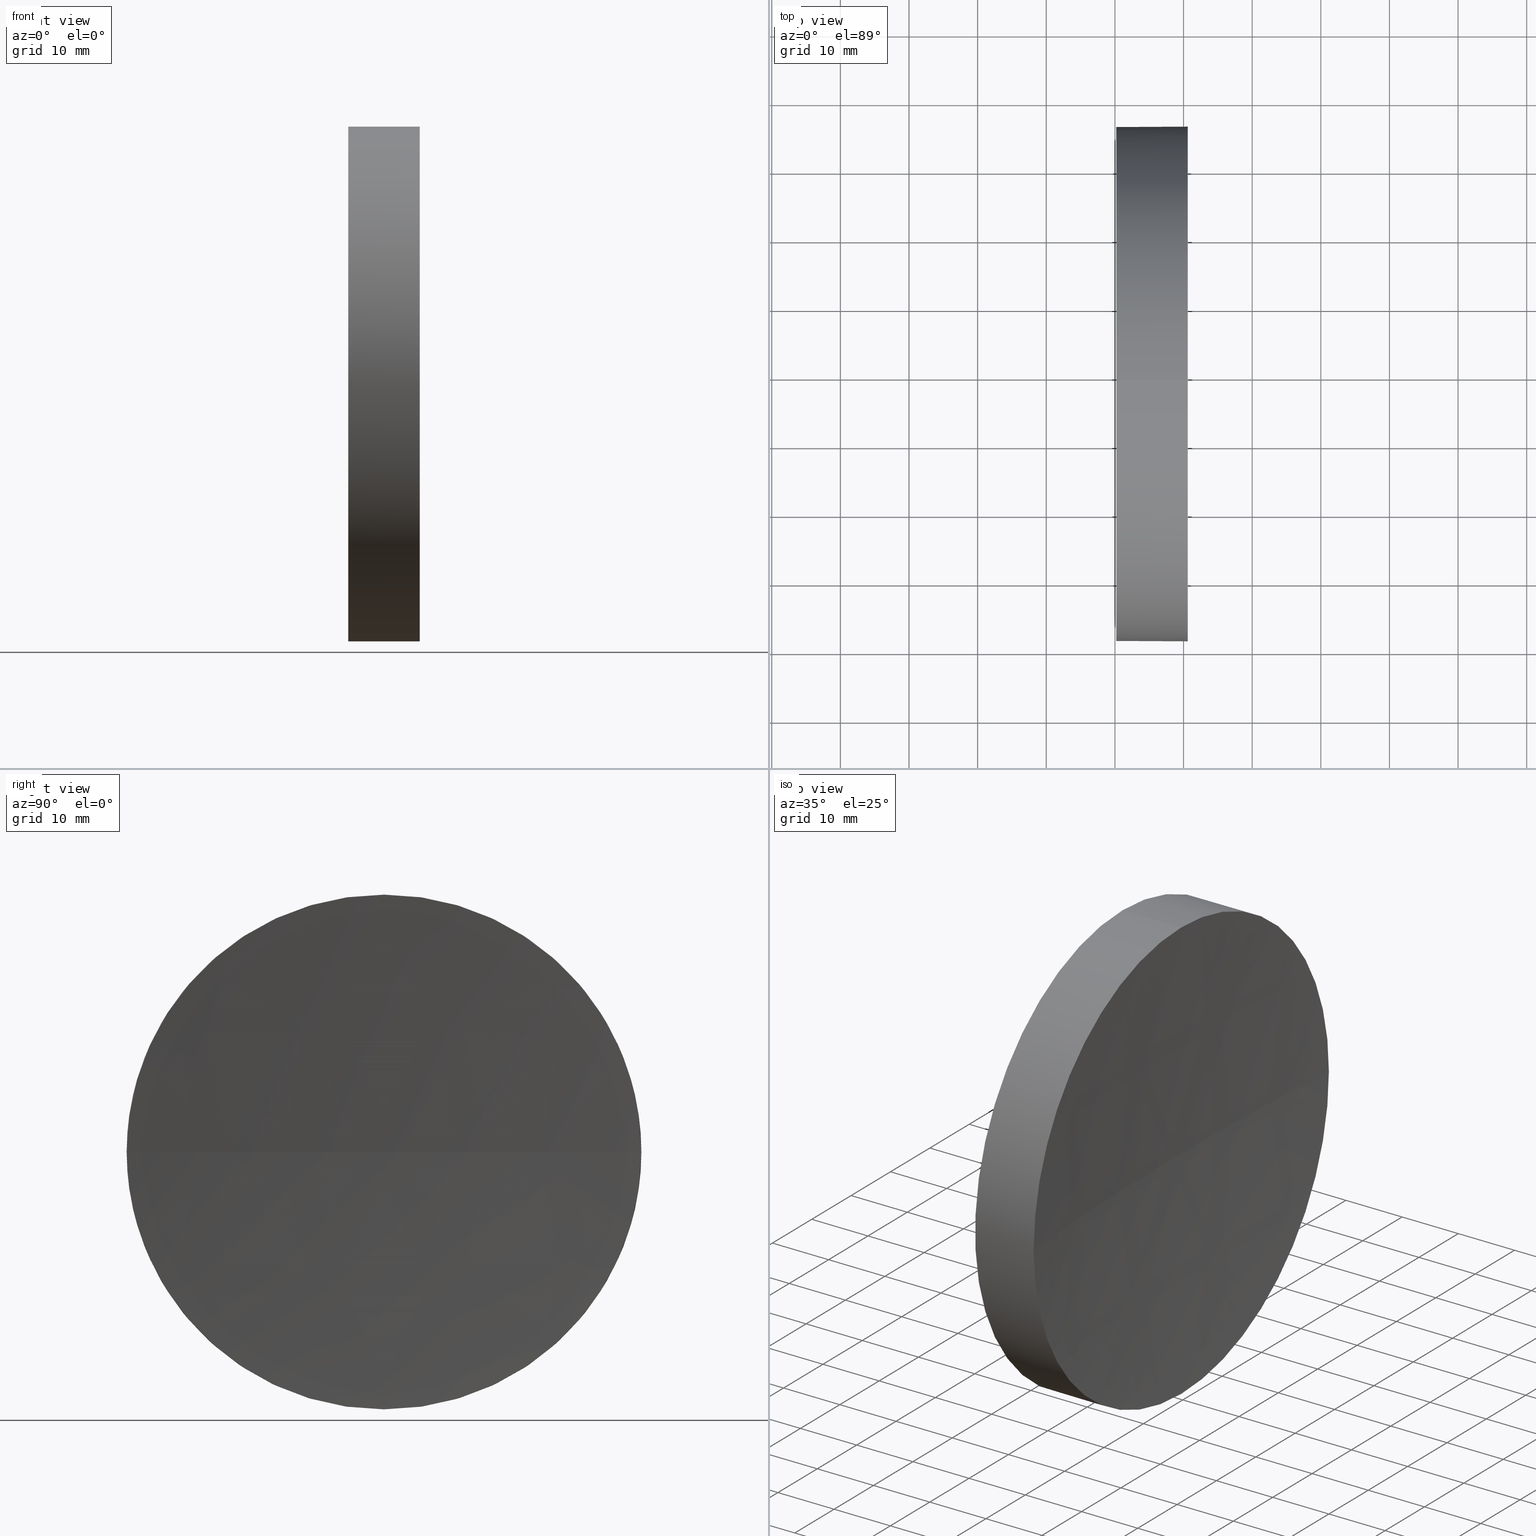
[diagram: canonical four-view strip — front | top / right | iso, engineering-drawing reading convention]
A machine part, canonical four-view strip (front | top / right | iso — engineering-drawing reading convention). The complete STEP part file that produces these views, byte-faithful:
ISO-10303-21;
HEADER;
FILE_DESCRIPTION (( 'STEP AP214' ),
    '1' );
FILE_NAME ('270062.STEP',
    '2019-07-23T08:49:29',
    ( '' ),
    ( '' ),
    'SwSTEP 2.0',
    'SolidWorks 2016',
    '' );
FILE_SCHEMA (( 'AUTOMOTIVE_DESIGN' ));
ENDSEC;

DATA;
#1 = DIRECTION ( 'NONE',  ( 0.0000000000000000000, -1.000000000000000000, -1.224646799147353200E-016 ) ) ;
#2 = PRESENTATION_STYLE_ASSIGNMENT (( #165 ) ) ;
#3 = ADVANCED_FACE ( 'NONE', ( #16 ), #159, .T. ) ;
#4 = CARTESIAN_POINT ( 'NONE',  ( 240.6078455750809400, 138.7560422467448700, 0.0000000000000000000 ) ) ;
#5 = DIRECTION ( 'NONE',  ( 0.0000000000000000000, -1.000000000000000000, 0.0000000000000000000 ) ) ;
#6 =( LENGTH_UNIT ( ) NAMED_UNIT ( * ) SI_UNIT ( .MILLI., .METRE. ) );
#7 = CARTESIAN_POINT ( 'NONE',  ( 240.6078455750809400, 138.7560422467448700, 0.0000000000000000000 ) ) ;
#8 = COLOUR_RGB ( '',1.000000000000000000, 1.000000000000000000, 1.000000000000000000 ) ;
#9 = FILL_AREA_STYLE_COLOUR ( '', #104 ) ;
#10 = FACE_OUTER_BOUND ( 'NONE', #133, .T. ) ;
#11 = VECTOR ( 'NONE', #85, 1000.000000000000000 ) ;
#12 = PRODUCT_DEFINITION ( 'δ֪', '', #99, #76 ) ;
#13 = CARTESIAN_POINT ( 'NONE',  ( 230.1996119052661200, 138.7560422467448700, -37.50000000000000700 ) ) ;
#14 = CARTESIAN_POINT ( 'NONE',  ( 240.6078455750809400, 138.7560422467448700, 0.0000000000000000000 ) ) ;
#15 = CARTESIAN_POINT ( 'NONE',  ( 217.9702860043302100, 138.7560422467448700, 0.0000000000000000000 ) ) ;
#16 = FACE_OUTER_BOUND ( 'NONE', #29, .T. ) ;
#17 = ADVANCED_FACE ( 'NONE', ( #96 ), #21, .T. ) ;
#18 =( NAMED_UNIT ( * ) SI_UNIT ( $, .STERADIAN. ) SOLID_ANGLE_UNIT ( ) );
#19 = SURFACE_STYLE_FILL_AREA ( #51 ) ;
#20 = EDGE_CURVE ( 'NONE', #171, #34, #143, .T. ) ;
#21 = CYLINDRICAL_SURFACE ( 'NONE', #70, 37.50000000000000700 ) ;
#22 = DIRECTION ( 'NONE',  ( 0.0000000000000000000, 0.0000000000000000000, 1.000000000000000000 ) ) ;
#23 = SURFACE_STYLE_USAGE ( .BOTH. , #167 ) ;
#24 = EDGE_CURVE ( 'NONE', #182, #171, #41, .T. ) ;
#25 = EDGE_LOOP ( 'NONE', ( #183, #124, #166, #158, #163 ) ) ;
#26 = STYLED_ITEM ( 'NONE', ( #135 ), #55 ) ;
#27 = DIRECTION ( 'NONE',  ( 0.0000000000000000000, 0.0000000000000000000, 1.000000000000000000 ) ) ;
#28 = AXIS2_PLACEMENT_3D ( 'NONE', #33, #31, #136 ) ;
#29 = EDGE_LOOP ( 'NONE', ( #114, #172, #50, #30, #145 ) ) ;
#30 = ORIENTED_EDGE ( 'NONE', *, *, #140, .T. ) ;
#31 = DIRECTION ( 'NONE',  ( -1.000000000000000000, -0.0000000000000000000, -0.0000000000000000000 ) ) ;
#32 = DIRECTION ( 'NONE',  ( -1.000000000000000000, -0.0000000000000000000, -0.0000000000000000000 ) ) ;
#33 = CARTESIAN_POINT ( 'NONE',  ( 240.6078455750809400, 138.7560422467448700, 0.0000000000000000000 ) ) ;
#34 = VERTEX_POINT ( 'NONE', #175 ) ;
#35 =( NAMED_UNIT ( * ) PLANE_ANGLE_UNIT ( ) SI_UNIT ( $, .RADIAN. ) );
#36 = EDGE_CURVE ( 'NONE', #127, #68, #186, .T. ) ;
#37 = FILL_AREA_STYLE_COLOUR ( '', #8 ) ;
#38 = UNCERTAINTY_MEASURE_WITH_UNIT (LENGTH_MEASURE( 1.000000000000000100E-005 ), #169, 'distance_accuracy_value', 'NONE');
#39 = ORIENTED_EDGE ( 'NONE', *, *, #78, .F. ) ;
#40 =( NAMED_UNIT ( * ) SI_UNIT ( $, .STERADIAN. ) SOLID_ANGLE_UNIT ( ) );
#41 = CIRCLE ( 'NONE', #28, 37.50000000000000700 ) ;
#42 = EDGE_CURVE ( 'NONE', #178, #182, #91, .T. ) ;
#43 = ORIENTED_EDGE ( 'NONE', *, *, #48, .T. ) ;
#44 = CARTESIAN_POINT ( 'NONE',  ( 230.1996119052661200, 138.7560422467448700, 0.0000000000000000000 ) ) ;
#45 = DIRECTION ( 'NONE',  ( -1.000000000000000000, -0.0000000000000000000, -0.0000000000000000000 ) ) ;
#46 = ADVANCED_FACE ( 'NONE', ( #168 ), #150, .F. ) ;
#47 = CARTESIAN_POINT ( 'NONE',  ( 230.1996119052661200, 138.7560422467448700, 37.50000000000000700 ) ) ;
#48 = EDGE_CURVE ( 'NONE', #68, #127, #137, .T. ) ;
#49 = AXIS2_PLACEMENT_3D ( 'NONE', #7, #177, #22 ) ;
#50 = ORIENTED_EDGE ( 'NONE', *, *, #71, .T. ) ;
#51 = FILL_AREA_STYLE ('',( #37 ) ) ;
#52 = APPLICATION_PROTOCOL_DEFINITION ( 'draft international standard', 'automotive_design', 1998, #79 ) ;
#53 = STYLED_ITEM ( 'NONE', ( #2 ), #97 ) ;
#54 = AXIS2_PLACEMENT_3D ( 'NONE', #129, #100, #101 ) ;
#55 = ADVANCED_BREP_SHAPE_REPRESENTATION ( '270062', ( #97, #54 ), #153 ) ;
#56 = DIRECTION ( 'NONE',  ( 0.0000000000000000000, -1.224646799147353200E-016, 1.000000000000000000 ) ) ;
#57 = AXIS2_PLACEMENT_3D ( 'NONE', #58, #63, #125 ) ;
#58 = CARTESIAN_POINT ( 'NONE',  ( 739.1996124545592000, 138.7560422467449300, 0.0000000000000000000 ) ) ;
#59 = EDGE_CURVE ( 'NONE', #171, #127, #102, .T. ) ;
#60 = DIRECTION ( 'NONE',  ( 0.0000000000000000000, 0.0000000000000000000, -1.000000000000000000 ) ) ;
#61 =( NAMED_UNIT ( * ) PLANE_ANGLE_UNIT ( ) SI_UNIT ( $, .RADIAN. ) );
#62 = PRODUCT ( '270062', '270062', '', ( #139 ) ) ;
#63 = DIRECTION ( 'NONE',  ( 0.0000000000000000000, 0.0000000000000000000, 1.000000000000000000 ) ) ;
#64 = APPLICATION_CONTEXT ( 'automotive_design' ) ;
#65 = ORIENTED_EDGE ( 'NONE', *, *, #69, .T. ) ;
#66 = MECHANICAL_DESIGN_GEOMETRIC_PRESENTATION_REPRESENTATION (  '', ( #53 ), #82 ) ;
#67 = EDGE_LOOP ( 'NONE', ( #43, #112 ) ) ;
#68 = VERTEX_POINT ( 'NONE', #47 ) ;
#69 = EDGE_CURVE ( 'NONE', #182, #89, #121, .T. ) ;
#70 = AXIS2_PLACEMENT_3D ( 'NONE', #77, #173, #27 ) ;
#71 = EDGE_CURVE ( 'NONE', #34, #178, #118, .T. ) ;
#72 = CARTESIAN_POINT ( 'NONE',  ( 217.9702860043302100, 138.7560422467448700, -37.50000000000000700 ) ) ;
#73 = VECTOR ( 'NONE', #181, 1000.000000000000000 ) ;
#74 = DIRECTION ( 'NONE',  ( 0.0000000000000000000, 0.0000000000000000000, 1.000000000000000000 ) ) ;
#75 =( GEOMETRIC_REPRESENTATION_CONTEXT ( 3 ) GLOBAL_UNCERTAINTY_ASSIGNED_CONTEXT ( ( #111 ) ) GLOBAL_UNIT_ASSIGNED_CONTEXT ( ( #179, #35, #142 ) ) REPRESENTATION_CONTEXT ( 'NONE', 'WORKASPACE' ) );
#76 = PRODUCT_DEFINITION_CONTEXT ( 'detailed design', #79, 'design' ) ;
#77 = CARTESIAN_POINT ( 'NONE',  ( 217.9702860043302100, 138.7560422467448700, 0.0000000000000000000 ) ) ;
#78 = EDGE_CURVE ( 'NONE', #34, #89, #151, .T. ) ;
#79 = APPLICATION_CONTEXT ( 'automotive_design' ) ;
#80 = PRESENTATION_LAYER_ASSIGNMENT (  '', '', ( #26 ) ) ;
#81 = DIRECTION ( 'NONE',  ( 0.0000000000000000000, 0.0000000000000000000, -1.000000000000000000 ) ) ;
#82 =( GEOMETRIC_REPRESENTATION_CONTEXT ( 3 ) GLOBAL_UNCERTAINTY_ASSIGNED_CONTEXT ( ( #38 ) ) GLOBAL_UNIT_ASSIGNED_CONTEXT ( ( #169, #146, #40 ) ) REPRESENTATION_CONTEXT ( 'NONE', 'WORKASPACE' ) );
#83 = UNCERTAINTY_MEASURE_WITH_UNIT (LENGTH_MEASURE( 1.000000000000000100E-005 ), #6, 'distance_accuracy_value', 'NONE');
#84 = AXIS2_PLACEMENT_3D ( 'NONE', #156, #81, #157 ) ;
#85 = DIRECTION ( 'NONE',  ( -1.000000000000000000, -0.0000000000000000000, -0.0000000000000000000 ) ) ;
#86 = SPHERICAL_SURFACE ( 'NONE', #57, 500.0000000000000000 ) ;
#87 = CARTESIAN_POINT ( 'NONE',  ( 239.1996124545592300, 138.7560422467449000, 0.0000000000000000000 ) ) ;
#88 = DIRECTION ( 'NONE',  ( 0.0000000000000000000, 0.0000000000000000000, 1.000000000000000000 ) ) ;
#89 = VERTEX_POINT ( 'NONE', #87 ) ;
#90 = AXIS2_PLACEMENT_3D ( 'NONE', #4, #162, #88 ) ;
#91 = CIRCLE ( 'NONE', #170, 37.50000000000000700 ) ;
#92 = SURFACE_SIDE_STYLE ('',( #131 ) ) ;
#93 = ADVANCED_FACE ( 'NONE', ( #98 ), #86, .F. ) ;
#94 = CARTESIAN_POINT ( 'NONE',  ( 739.1996124545592000, 138.7560422467449300, 0.0000000000000000000 ) ) ;
#95 = AXIS2_PLACEMENT_3D ( 'NONE', #15, #176, #164 ) ;
#96 = FACE_OUTER_BOUND ( 'NONE', #25, .T. ) ;
#97 = MANIFOLD_SOLID_BREP ( '��ת1', #119 ) ;
#98 = FACE_OUTER_BOUND ( 'NONE', #117, .T. ) ;
#99 = PRODUCT_DEFINITION_FORMATION_WITH_SPECIFIED_SOURCE ( '�κ�', '', #62, .NOT_KNOWN. ) ;
#100 = DIRECTION ( 'NONE',  ( 0.0000000000000000000, 0.0000000000000000000, 1.000000000000000000 ) ) ;
#101 = DIRECTION ( 'NONE',  ( 1.000000000000000000, 0.0000000000000000000, 0.0000000000000000000 ) ) ;
#102 = LINE ( 'NONE', #72, #11 ) ;
#103 = AXIS2_PLACEMENT_3D ( 'NONE', #94, #155, #5 ) ;
#104 = COLOUR_RGB ( '',1.000000000000000000, 1.000000000000000000, 1.000000000000000000 ) ;
#105 = AXIS2_PLACEMENT_3D ( 'NONE', #44, #45, #161 ) ;
#106 = ORIENTED_EDGE ( 'NONE', *, *, #42, .F. ) ;
#107 = ORIENTED_EDGE ( 'NONE', *, *, #71, .F. ) ;
#108 = AXIS2_PLACEMENT_3D ( 'NONE', #149, #56, #1 ) ;
#109 = DIRECTION ( 'NONE',  ( -1.000000000000000000, -0.0000000000000000000, -0.0000000000000000000 ) ) ;
#110 = ORIENTED_EDGE ( 'NONE', *, *, #78, .T. ) ;
#111 = UNCERTAINTY_MEASURE_WITH_UNIT (LENGTH_MEASURE( 1.000000000000000100E-005 ), #179, 'distance_accuracy_value', 'NONE');
#112 = ORIENTED_EDGE ( 'NONE', *, *, #36, .T. ) ;
#113 = CARTESIAN_POINT ( 'NONE',  ( 240.6078455750809400, 138.7560422467448700, 37.50000000000000700 ) ) ;
#114 = ORIENTED_EDGE ( 'NONE', *, *, #59, .F. ) ;
#115 = ORIENTED_EDGE ( 'NONE', *, *, #69, .F. ) ;
#116 = AXIS2_PLACEMENT_3D ( 'NONE', #152, #174, #60 ) ;
#117 = EDGE_LOOP ( 'NONE', ( #115, #106, #107, #110 ) ) ;
#118 = CIRCLE ( 'NONE', #49, 37.50000000000000700 ) ;
#119 = CLOSED_SHELL ( 'NONE', ( #17, #138, #93, #3, #46 ) ) ;
#120 = AXIS2_PLACEMENT_3D ( 'NONE', #154, #109, #160 ) ;
#121 = CIRCLE ( 'NONE', #108, 500.0000000000000000 ) ;
#122 = APPLICATION_PROTOCOL_DEFINITION ( 'draft international standard', 'automotive_design', 1998, #64 ) ;
#123 = PRODUCT_RELATED_PRODUCT_CATEGORY ( 'part', '', ( #62 ) ) ;
#124 = ORIENTED_EDGE ( 'NONE', *, *, #59, .T. ) ;
#125 = DIRECTION ( 'NONE',  ( 0.0000000000000000000, -1.000000000000000000, 0.0000000000000000000 ) ) ;
#126 = LINE ( 'NONE', #184, #73 ) ;
#127 = VERTEX_POINT ( 'NONE', #13 ) ;
#128 = FILL_AREA_STYLE ('',( #9 ) ) ;
#129 = CARTESIAN_POINT ( 'NONE',  ( 0.0000000000000000000, 0.0000000000000000000, 0.0000000000000000000 ) ) ;
#130 = PRESENTATION_LAYER_ASSIGNMENT (  '', '', ( #53 ) ) ;
#131 = SURFACE_STYLE_FILL_AREA ( #128 ) ;
#132 = PRODUCT_DEFINITION_SHAPE ( 'NONE', 'NONE',  #12 ) ;
#133 = EDGE_LOOP ( 'NONE', ( #148, #65, #39, #185 ) ) ;
#134 = MECHANICAL_DESIGN_GEOMETRIC_PRESENTATION_REPRESENTATION (  '', ( #26 ), #75 ) ;
#135 = PRESENTATION_STYLE_ASSIGNMENT (( #23 ) ) ;
#136 = DIRECTION ( 'NONE',  ( 0.0000000000000000000, 0.0000000000000000000, 1.000000000000000000 ) ) ;
#137 = CIRCLE ( 'NONE', #120, 37.50000000000000700 ) ;
#138 = ADVANCED_FACE ( 'NONE', ( #10 ), #147, .F. ) ;
#139 = PRODUCT_CONTEXT ( 'NONE', #64, 'mechanical' ) ;
#140 = EDGE_CURVE ( 'NONE', #178, #68, #126, .T. ) ;
#141 = SHAPE_DEFINITION_REPRESENTATION ( #132, #55 ) ;
#142 =( NAMED_UNIT ( * ) SI_UNIT ( $, .STERADIAN. ) SOLID_ANGLE_UNIT ( ) );
#143 = CIRCLE ( 'NONE', #90, 37.50000000000000700 ) ;
#144 = CARTESIAN_POINT ( 'NONE',  ( 240.6078455750809400, 138.7560422467448700, -37.50000000000000700 ) ) ;
#145 = ORIENTED_EDGE ( 'NONE', *, *, #36, .F. ) ;
#146 =( NAMED_UNIT ( * ) PLANE_ANGLE_UNIT ( ) SI_UNIT ( $, .RADIAN. ) );
#147 = SPHERICAL_SURFACE ( 'NONE', #103, 500.0000000000000000 ) ;
#148 = ORIENTED_EDGE ( 'NONE', *, *, #24, .F. ) ;
#149 = CARTESIAN_POINT ( 'NONE',  ( 739.1996124545592000, 138.7560422467449300, 0.0000000000000000000 ) ) ;
#150 = PLANE ( 'NONE',  #116 ) ;
#151 = CIRCLE ( 'NONE', #84, 500.0000000000000000 ) ;
#152 = CARTESIAN_POINT ( 'NONE',  ( 230.1996119052661200, 138.7560422467448700, 0.0000000000000000000 ) ) ;
#153 =( GEOMETRIC_REPRESENTATION_CONTEXT ( 3 ) GLOBAL_UNCERTAINTY_ASSIGNED_CONTEXT ( ( #83 ) ) GLOBAL_UNIT_ASSIGNED_CONTEXT ( ( #6, #61, #18 ) ) REPRESENTATION_CONTEXT ( 'NONE', 'WORKASPACE' ) );
#154 = CARTESIAN_POINT ( 'NONE',  ( 230.1996119052661200, 138.7560422467448700, 0.0000000000000000000 ) ) ;
#155 = DIRECTION ( 'NONE',  ( 0.0000000000000000000, 0.0000000000000000000, 1.000000000000000000 ) ) ;
#156 = CARTESIAN_POINT ( 'NONE',  ( 739.1996124545592000, 138.7560422467449300, 0.0000000000000000000 ) ) ;
#157 = DIRECTION ( 'NONE',  ( -1.000000000000000000, 0.0000000000000000000, 0.0000000000000000000 ) ) ;
#158 = ORIENTED_EDGE ( 'NONE', *, *, #140, .F. ) ;
#159 = CYLINDRICAL_SURFACE ( 'NONE', #95, 37.50000000000000700 ) ;
#160 = DIRECTION ( 'NONE',  ( 0.0000000000000000000, 0.0000000000000000000, 1.000000000000000000 ) ) ;
#161 = DIRECTION ( 'NONE',  ( 0.0000000000000000000, 0.0000000000000000000, 1.000000000000000000 ) ) ;
#162 = DIRECTION ( 'NONE',  ( -1.000000000000000000, -0.0000000000000000000, -0.0000000000000000000 ) ) ;
#163 = ORIENTED_EDGE ( 'NONE', *, *, #42, .T. ) ;
#164 = DIRECTION ( 'NONE',  ( 0.0000000000000000000, 0.0000000000000000000, 1.000000000000000000 ) ) ;
#165 = SURFACE_STYLE_USAGE ( .BOTH. , #92 ) ;
#166 = ORIENTED_EDGE ( 'NONE', *, *, #48, .F. ) ;
#167 = SURFACE_SIDE_STYLE ('',( #19 ) ) ;
#168 = FACE_OUTER_BOUND ( 'NONE', #67, .T. ) ;
#169 =( LENGTH_UNIT ( ) NAMED_UNIT ( * ) SI_UNIT ( .MILLI., .METRE. ) );
#170 = AXIS2_PLACEMENT_3D ( 'NONE', #14, #32, #74 ) ;
#171 = VERTEX_POINT ( 'NONE', #144 ) ;
#172 = ORIENTED_EDGE ( 'NONE', *, *, #20, .T. ) ;
#173 = DIRECTION ( 'NONE',  ( -1.000000000000000000, -0.0000000000000000000, -0.0000000000000000000 ) ) ;
#174 = DIRECTION ( 'NONE',  ( 1.000000000000000000, 0.0000000000000000000, 0.0000000000000000000 ) ) ;
#175 = CARTESIAN_POINT ( 'NONE',  ( 240.6078455750809700, 101.2560422467449100, 0.0000000000000000000 ) ) ;
#176 = DIRECTION ( 'NONE',  ( -1.000000000000000000, -0.0000000000000000000, -0.0000000000000000000 ) ) ;
#177 = DIRECTION ( 'NONE',  ( -1.000000000000000000, -0.0000000000000000000, -0.0000000000000000000 ) ) ;
#178 = VERTEX_POINT ( 'NONE', #113 ) ;
#179 =( LENGTH_UNIT ( ) NAMED_UNIT ( * ) SI_UNIT ( .MILLI., .METRE. ) );
#180 = CARTESIAN_POINT ( 'NONE',  ( 240.6078455750809700, 176.2560422467449000, 4.592425496802570400E-015 ) ) ;
#181 = DIRECTION ( 'NONE',  ( -1.000000000000000000, -0.0000000000000000000, -0.0000000000000000000 ) ) ;
#182 = VERTEX_POINT ( 'NONE', #180 ) ;
#183 = ORIENTED_EDGE ( 'NONE', *, *, #24, .T. ) ;
#184 = CARTESIAN_POINT ( 'NONE',  ( 217.9702860043302100, 138.7560422467448700, 37.50000000000000700 ) ) ;
#185 = ORIENTED_EDGE ( 'NONE', *, *, #20, .F. ) ;
#186 = CIRCLE ( 'NONE', #105, 37.50000000000000700 ) ;
ENDSEC;
END-ISO-10303-21;
